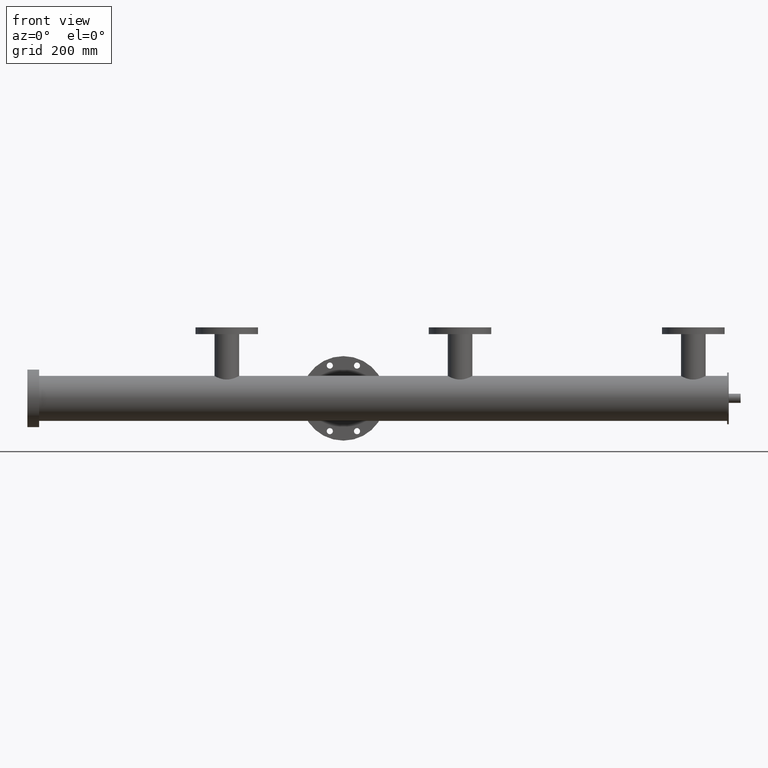
[diagram: clean part render]
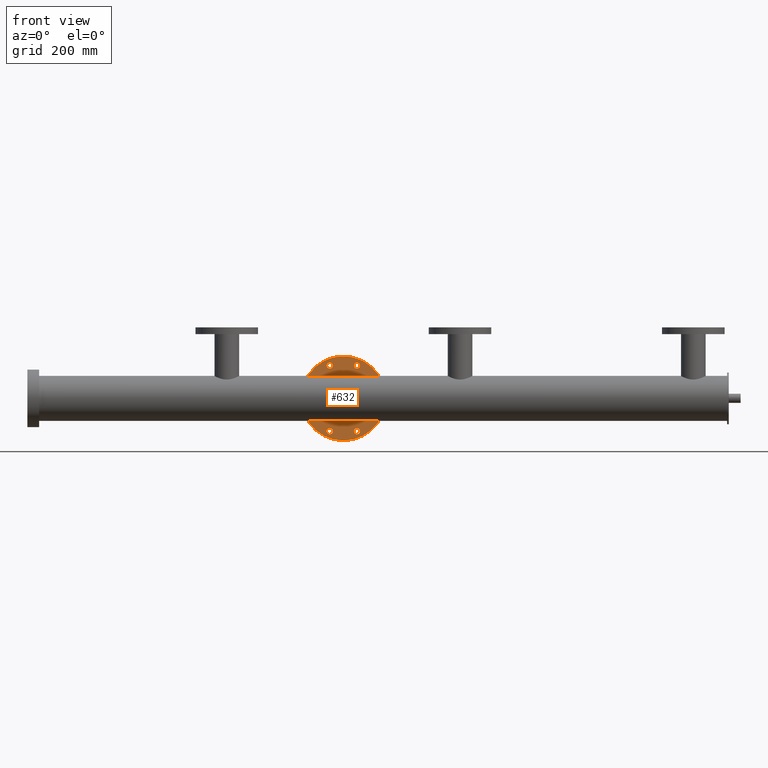
[diagram: same view with one face highlighted and labeled with its STEP entity id]
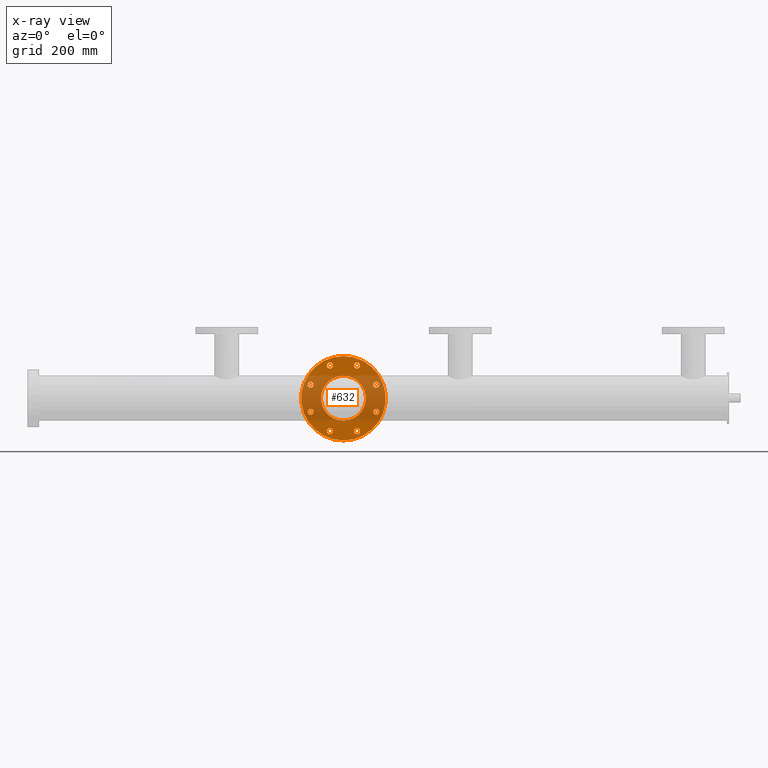
[diagram: x-ray of the same camera — body ghosted, the highlighted face saturated]
A machine part, front view. The second image highlights one B-rep face of the part: STEP entity #632.
The next image is the same camera in x-ray: the body ghosted, the highlighted face saturated — about 51% of this face is hidden behind the body in this view.
In plain terms, the highlighted planar face has unit normal (0, 1, -0).
Its self-contained STEP definition (entity closure, byte-faithful):
#52 = ORIENTED_EDGE ( 'NONE', *, *, #1548, .T. ) ;
#80 = DIRECTION ( 'NONE',  ( 0.000000000000000000, -5.448128108011975159E-32, 1.000000000000000000 ) ) ;
#100 = CARTESIAN_POINT ( 'NONE',  ( 33.81779936765415329, 103.3713119443644786, -4.437342591868188778E-31 ) ) ;
#143 = CARTESIAN_POINT ( 'NONE',  ( 66.50000000000000000, -6.557406274649660632E-30, 0.000000000000000000 ) ) ;
#229 = CIRCLE ( 'NONE', #545, 8.999999999999994671 ) ;
#303 = CARTESIAN_POINT ( 'NONE',  ( 31.18176039833452151, -97.00735091368505891, 0.000000000000000000 ) ) ;
#310 = EDGE_CURVE ( 'NONE', #4547, #3344, #7905, .T. ) ;
#409 = ORIENTED_EDGE ( 'NONE', *, *, #7514, .T. ) ;
#422 = DIRECTION ( 'NONE',  ( 1.000000000000000000, -9.860761315262647568E-32, 0.000000000000000000 ) ) ;
#520 = AXIS2_PLACEMENT_3D ( 'NONE', #8677, #4870, #3472 ) ;
#545 = AXIS2_PLACEMENT_3D ( 'NONE', #812, #4667, #9821 ) ;
#548 = CIRCLE ( 'NONE', #2775, 8.999999999999996447 ) ;
#562 = EDGE_CURVE ( 'NONE', #8723, #1207, #5442, .T. ) ;
#632 = ADVANCED_FACE ( 'NONE', ( #6120, #2165, #9216, #6726, #2922, #813, #2367, #3867, #6928, #4413 ), #3664, .F. ) ;
#743 = CARTESIAN_POINT ( 'NONE',  ( -40.18176039833451796, 97.00735091368507312, 0.000000000000000000 ) ) ;
#800 = DIRECTION ( 'NONE',  ( 1.000000000000000000, -9.860761315262647568E-32, 0.000000000000000000 ) ) ;
#801 = CIRCLE ( 'NONE', #1766, 8.999999999999996447 ) ;
#812 = CARTESIAN_POINT ( 'NONE',  ( 40.18176039833451796, -97.00735091368505891, 0.000000000000000000 ) ) ;
#813 = FACE_BOUND ( 'NONE', #2011, .T. ) ;
#832 = CARTESIAN_POINT ( 'NONE',  ( 0.000000000000000000, 0.000000000000000000, 0.000000000000000000 ) ) ;
#927 = DIRECTION ( 'NONE',  ( 0.000000000000000000, 5.448128108011975159E-32, -1.000000000000000000 ) ) ;
#996 = CARTESIAN_POINT ( 'NONE',  ( -103.3713119443641375, 33.81779936765534700, 5.546678239835235973E-32 ) ) ;
#999 = AXIS2_PLACEMENT_3D ( 'NONE', #7659, #9868, #8521 ) ;
#1056 = CARTESIAN_POINT ( 'NONE',  ( -66.50000000000000000, 8.143901214329904707E-15, 4.436901711466361209E-46 ) ) ;
#1083 = EDGE_CURVE ( 'NONE', #4926, #9372, #4323, .T. ) ;
#1127 = ORIENTED_EDGE ( 'NONE', *, *, #3205, .T. ) ;
#1207 = VERTEX_POINT ( 'NONE', #7015 ) ;
#1302 = AXIS2_PLACEMENT_3D ( 'NONE', #6320, #9366, #9120 ) ;
#1331 = DIRECTION ( 'NONE',  ( 0.000000000000000000, 5.448128108011975159E-32, -1.000000000000000000 ) ) ;
#1366 = DIRECTION ( 'NONE',  ( 0.000000000000000000, 5.448128108011975159E-32, -1.000000000000000000 ) ) ;
#1490 = VERTEX_POINT ( 'NONE', #4780 ) ;
#1548 = EDGE_CURVE ( 'NONE', #2047, #8408, #5123, .T. ) ;
#1588 = CIRCLE ( 'NONE', #7203, 8.999999999999996447 ) ;
#1671 = CARTESIAN_POINT ( 'NONE',  ( -97.00735091368493102, -40.18176039833485902, 0.000000000000000000 ) ) ;
#1698 = EDGE_LOOP ( 'NONE', ( #7377, #2779 ) ) ;
#1706 = EDGE_LOOP ( 'NONE', ( #4277, #7326 ) ) ;
#1766 = AXIS2_PLACEMENT_3D ( 'NONE', #7030, #927, #1824 ) ;
#1824 = DIRECTION ( 'NONE',  ( -0.7071067811865467956, -0.7071067811865483499, 6.162975822039153361E-33 ) ) ;
#1933 = CARTESIAN_POINT ( 'NONE',  ( 49.18176039833451085, -97.00735091368505891, 0.000000000000000000 ) ) ;
#1986 = DIRECTION ( 'NONE',  ( 0.7071067811865409114, 0.7071067811865541231, -6.162975822039156098E-33 ) ) ;
#2011 = EDGE_LOOP ( 'NONE', ( #9537, #7764 ) ) ;
#2047 = VERTEX_POINT ( 'NONE', #7049 ) ;
#2165 = FACE_BOUND ( 'NONE', #1706, .T. ) ;
#2174 = DIRECTION ( 'NONE',  ( -1.000000000000000000, 0.000000000000000000, 0.000000000000000000 ) ) ;
#2241 = AXIS2_PLACEMENT_3D ( 'NONE', #4278, #1366, #5745 ) ;
#2367 = FACE_BOUND ( 'NONE', #8548, .T. ) ;
#2415 = ORIENTED_EDGE ( 'NONE', *, *, #5394, .T. ) ;
#2457 = CIRCLE ( 'NONE', #8694, 125.0000000000000000 ) ;
#2491 = CARTESIAN_POINT ( 'NONE',  ( -40.18176039833382163, -97.00735091368534313, 0.000000000000000000 ) ) ;
#2571 = CARTESIAN_POINT ( 'NONE',  ( 0.000000000000000000, 0.000000000000000000, 0.000000000000000000 ) ) ;
#2666 = CARTESIAN_POINT ( 'NONE',  ( 97.00735091368464680, 40.18176039833552693, 0.000000000000000000 ) ) ;
#2694 = CARTESIAN_POINT ( 'NONE',  ( 40.18176039833315372, 97.00735091368562735, 0.000000000000000000 ) ) ;
#2744 = CIRCLE ( 'NONE', #1302, 8.999999999999994671 ) ;
#2775 = AXIS2_PLACEMENT_3D ( 'NONE', #2694, #5596, #8646 ) ;
#2779 = ORIENTED_EDGE ( 'NONE', *, *, #3792, .T. ) ;
#2922 = FACE_BOUND ( 'NONE', #7668, .T. ) ;
#3098 = EDGE_CURVE ( 'NONE', #8408, #2047, #8821, .T. ) ;
#3127 = CARTESIAN_POINT ( 'NONE',  ( 97.00735091368454732, 49.18176039833551982, -4.941586122532633914E-31 ) ) ;
#3194 = EDGE_CURVE ( 'NONE', #3344, #4547, #5142, .T. ) ;
#3205 = EDGE_CURVE ( 'NONE', #9223, #5204, #4992, .T. ) ;
#3225 = ORIENTED_EDGE ( 'NONE', *, *, #3098, .T. ) ;
#3262 = CARTESIAN_POINT ( 'NONE',  ( -33.81779936765486383, -103.3713119443642370, 6.656013887802282729E-31 ) ) ;
#3334 = DIRECTION ( 'NONE',  ( 0.000000000000000000, 5.448128108011975159E-32, -1.000000000000000000 ) ) ;
#3344 = VERTEX_POINT ( 'NONE', #143 ) ;
#3472 = DIRECTION ( 'NONE',  ( -0.7071067811865467956, -0.7071067811865483499, 6.162975822039153361E-33 ) ) ;
#3525 = CIRCLE ( 'NONE', #7364, 8.999999999999994671 ) ;
#3664 = PLANE ( 'NONE',  #6878 ) ;
#3691 = EDGE_LOOP ( 'NONE', ( #2415, #8761 ) ) ;
#3730 = CIRCLE ( 'NONE', #4851, 8.999999999999994671 ) ;
#3792 = EDGE_CURVE ( 'NONE', #1207, #8723, #5310, .T. ) ;
#3839 = VERTEX_POINT ( 'NONE', #1933 ) ;
#3867 = FACE_BOUND ( 'NONE', #7956, .T. ) ;
#4036 = CARTESIAN_POINT ( 'NONE',  ( -90.64338988300629296, 46.54572142901321286, 3.467167496953475610E-31 ) ) ;
#4132 = CARTESIAN_POINT ( 'NONE',  ( -97.00735091368493102, -40.18176039833485902, 0.000000000000000000 ) ) ;
#4166 = AXIS2_PLACEMENT_3D ( 'NONE', #2491, #3334, #7191 ) ;
#4271 = DIRECTION ( 'NONE',  ( 0.000000000000000000, 5.448128108011975159E-32, -1.000000000000000000 ) ) ;
#4277 = ORIENTED_EDGE ( 'NONE', *, *, #9464, .T. ) ;
#4278 = CARTESIAN_POINT ( 'NONE',  ( 97.00735091368548524, -40.18176039833348767, 0.000000000000000000 ) ) ;
#4304 = CARTESIAN_POINT ( 'NONE',  ( 0.000000000000000000, 0.000000000000000000, 0.000000000000000000 ) ) ;
#4323 = CIRCLE ( 'NONE', #9097, 125.0000000000000000 ) ;
#4413 = FACE_OUTER_BOUND ( 'NONE', #3691, .T. ) ;
#4435 = VERTEX_POINT ( 'NONE', #100 ) ;
#4451 = VERTEX_POINT ( 'NONE', #5008 ) ;
#4464 = CARTESIAN_POINT ( 'NONE',  ( -40.18176039833451796, 97.00735091368507312, 0.000000000000000000 ) ) ;
#4547 = VERTEX_POINT ( 'NONE', #1056 ) ;
#4667 = DIRECTION ( 'NONE',  ( 0.000000000000000000, 5.448128108011975159E-32, -1.000000000000000000 ) ) ;
#4725 = DIRECTION ( 'NONE',  ( 0.000000000000000000, 5.448128108011975159E-32, -1.000000000000000000 ) ) ;
#4780 = CARTESIAN_POINT ( 'NONE',  ( -31.18176039833452151, 97.00735091368507312, 0.000000000000000000 ) ) ;
#4785 = DIRECTION ( 'NONE',  ( 3.083952846180992055E-15, -1.000000000000000000, 9.570953035786913806E-32 ) ) ;
#4829 = CARTESIAN_POINT ( 'NONE',  ( -97.00735091368495944, -31.18176039833486612, 4.903315297210774797E-31 ) ) ;
#4851 = AXIS2_PLACEMENT_3D ( 'NONE', #9865, #5321, #5369 ) ;
#4870 = DIRECTION ( 'NONE',  ( 0.000000000000000000, 5.448128108011975159E-32, -1.000000000000000000 ) ) ;
#4926 = VERTEX_POINT ( 'NONE', #8390 ) ;
#4992 = CIRCLE ( 'NONE', #520, 8.999999999999996447 ) ;
#5005 = CIRCLE ( 'NONE', #6281, 8.999999999999994671 ) ;
#5008 = CARTESIAN_POINT ( 'NONE',  ( -49.18176039833451085, 97.00735091368507312, 0.000000000000000000 ) ) ;
#5123 = CIRCLE ( 'NONE', #4166, 8.999999999999998224 ) ;
#5142 = CIRCLE ( 'NONE', #6096, 66.50000000000000000 ) ;
#5151 = DIRECTION ( 'NONE',  ( -1.000000000000000000, 0.000000000000000000, 0.000000000000000000 ) ) ;
#5175 = EDGE_CURVE ( 'NONE', #6492, #4435, #548, .T. ) ;
#5204 = VERTEX_POINT ( 'NONE', #996 ) ;
#5218 = DIRECTION ( 'NONE',  ( 5.372269088807956380E-63, 5.448128108011975159E-32, -1.000000000000000000 ) ) ;
#5310 = CIRCLE ( 'NONE', #5640, 8.999999999999992895 ) ;
#5321 = DIRECTION ( 'NONE',  ( 0.000000000000000000, 5.448128108011975159E-32, -1.000000000000000000 ) ) ;
#5369 = DIRECTION ( 'NONE',  ( 1.000000000000000000, 0.000000000000000000, 0.000000000000000000 ) ) ;
#5379 = CARTESIAN_POINT ( 'NONE',  ( -97.00735091368490259, -49.18176039833485902, 8.613857732208217170E-31 ) ) ;
#5394 = EDGE_CURVE ( 'NONE', #9372, #4926, #2457, .T. ) ;
#5442 = CIRCLE ( 'NONE', #2241, 8.999999999999992895 ) ;
#5515 = ORIENTED_EDGE ( 'NONE', *, *, #7571, .T. ) ;
#5596 = DIRECTION ( 'NONE',  ( 0.000000000000000000, 5.448128108011975159E-32, -1.000000000000000000 ) ) ;
#5640 = AXIS2_PLACEMENT_3D ( 'NONE', #9497, #7145, #1986 ) ;
#5682 = DIRECTION ( 'NONE',  ( 0.000000000000000000, -5.448128108011975159E-32, 1.000000000000000000 ) ) ;
#5725 = CARTESIAN_POINT ( 'NONE',  ( 103.3713119443643507, -33.81779936765450856, -5.546678239835235973E-32 ) ) ;
#5726 = DIRECTION ( 'NONE',  ( 0.000000000000000000, 5.448128108011975159E-32, -1.000000000000000000 ) ) ;
#5745 = DIRECTION ( 'NONE',  ( 0.7071067811865409114, 0.7071067811865541231, -6.162975822039156098E-33 ) ) ;
#5772 = VERTEX_POINT ( 'NONE', #303 ) ;
#5873 = DIRECTION ( 'NONE',  ( -0.7071067811865561215, 0.7071067811865391350, -4.930380657631322689E-32 ) ) ;
#5991 = EDGE_CURVE ( 'NONE', #1490, #4451, #7237, .T. ) ;
#6069 = CIRCLE ( 'NONE', #9740, 8.999999999999994671 ) ;
#6096 = AXIS2_PLACEMENT_3D ( 'NONE', #2571, #6424, #422 ) ;
#6120 = FACE_BOUND ( 'NONE', #9191, .T. ) ;
#6281 = AXIS2_PLACEMENT_3D ( 'NONE', #4464, #1331, #2174 ) ;
#6320 = CARTESIAN_POINT ( 'NONE',  ( 97.00735091368464680, 40.18176039833552693, 0.000000000000000000 ) ) ;
#6424 = DIRECTION ( 'NONE',  ( 0.000000000000000000, -5.448128108011975159E-32, 1.000000000000000000 ) ) ;
#6492 = VERTEX_POINT ( 'NONE', #7222 ) ;
#6726 = FACE_BOUND ( 'NONE', #9808, .T. ) ;
#6758 = ORIENTED_EDGE ( 'NONE', *, *, #6921, .T. ) ;
#6878 = AXIS2_PLACEMENT_3D ( 'NONE', #9771, #5218, #8264 ) ;
#6921 = EDGE_CURVE ( 'NONE', #4451, #1490, #5005, .T. ) ;
#6928 = FACE_BOUND ( 'NONE', #9767, .T. ) ;
#6935 = AXIS2_PLACEMENT_3D ( 'NONE', #743, #8341, #5151 ) ;
#7015 = CARTESIAN_POINT ( 'NONE',  ( 90.64338988300661981, -46.54572142901246679, -3.467167496953502761E-31 ) ) ;
#7024 = ORIENTED_EDGE ( 'NONE', *, *, #5991, .T. ) ;
#7030 = CARTESIAN_POINT ( 'NONE',  ( -97.00735091368521523, 40.18176039833427637, 0.000000000000000000 ) ) ;
#7040 = CIRCLE ( 'NONE', #9597, 8.999999999999994671 ) ;
#7049 = CARTESIAN_POINT ( 'NONE',  ( -46.54572142901277942, -90.64338988300644928, 3.467167496953451526E-31 ) ) ;
#7124 = VERTEX_POINT ( 'NONE', #3127 ) ;
#7145 = DIRECTION ( 'NONE',  ( 0.000000000000000000, 5.448128108011975159E-32, -1.000000000000000000 ) ) ;
#7191 = DIRECTION ( 'NONE',  ( 0.7071067811865513475, -0.7071067811865435759, 7.395570986446982391E-32 ) ) ;
#7203 = AXIS2_PLACEMENT_3D ( 'NONE', #7281, #4271, #5873 ) ;
#7222 = CARTESIAN_POINT ( 'NONE',  ( 46.54572142901216836, 90.64338988300679034, -3.467167496953420872E-31 ) ) ;
#7232 = EDGE_CURVE ( 'NONE', #5204, #9223, #801, .T. ) ;
#7237 = CIRCLE ( 'NONE', #6935, 8.999999999999994671 ) ;
#7281 = CARTESIAN_POINT ( 'NONE',  ( 40.18176039833315372, 97.00735091368562735, 0.000000000000000000 ) ) ;
#7326 = ORIENTED_EDGE ( 'NONE', *, *, #8431, .T. ) ;
#7364 = AXIS2_PLACEMENT_3D ( 'NONE', #1671, #4725, #9381 ) ;
#7377 = ORIENTED_EDGE ( 'NONE', *, *, #562, .T. ) ;
#7422 = ORIENTED_EDGE ( 'NONE', *, *, #9555, .T. ) ;
#7469 = VERTEX_POINT ( 'NONE', #4829 ) ;
#7514 = EDGE_CURVE ( 'NONE', #5772, #3839, #3730, .T. ) ;
#7571 = EDGE_CURVE ( 'NONE', #3839, #5772, #229, .T. ) ;
#7579 = DIRECTION ( 'NONE',  ( 1.000000000000000000, -9.860761315262647568E-32, 0.000000000000000000 ) ) ;
#7659 = CARTESIAN_POINT ( 'NONE',  ( -40.18176039833382163, -97.00735091368534313, 0.000000000000000000 ) ) ;
#7668 = EDGE_LOOP ( 'NONE', ( #3225, #52 ) ) ;
#7764 = ORIENTED_EDGE ( 'NONE', *, *, #9852, .T. ) ;
#7905 = CIRCLE ( 'NONE', #9341, 66.50000000000000000 ) ;
#7956 = EDGE_LOOP ( 'NONE', ( #6758, #7024 ) ) ;
#8015 = DIRECTION ( 'NONE',  ( -1.079383496163347338E-14, 1.000000000000000000, -5.490651247258484925E-32 ) ) ;
#8020 = DIRECTION ( 'NONE',  ( 1.000000000000000000, -9.860761315262647568E-32, 0.000000000000000000 ) ) ;
#8084 = ORIENTED_EDGE ( 'NONE', *, *, #7232, .T. ) ;
#8264 = DIRECTION ( 'NONE',  ( -1.000000000000000000, 9.860761315262647568E-32, 0.000000000000000000 ) ) ;
#8341 = DIRECTION ( 'NONE',  ( 0.000000000000000000, 5.448128108011975159E-32, -1.000000000000000000 ) ) ;
#8390 = CARTESIAN_POINT ( 'NONE',  ( -125.0000000000000000, 1.530808498934192823E-14, 8.340040811026995035E-46 ) ) ;
#8408 = VERTEX_POINT ( 'NONE', #3262 ) ;
#8431 = EDGE_CURVE ( 'NONE', #9558, #7124, #2744, .T. ) ;
#8457 = CARTESIAN_POINT ( 'NONE',  ( 125.0000000000000000, -1.232595164407830946E-29, 0.000000000000000000 ) ) ;
#8489 = VERTEX_POINT ( 'NONE', #5379 ) ;
#8521 = DIRECTION ( 'NONE',  ( 0.7071067811865513475, -0.7071067811865435759, 7.395570986446982391E-32 ) ) ;
#8548 = EDGE_LOOP ( 'NONE', ( #8084, #1127 ) ) ;
#8563 = ORIENTED_EDGE ( 'NONE', *, *, #310, .F. ) ;
#8589 = DIRECTION ( 'NONE',  ( 0.000000000000000000, 5.448128108011975159E-32, -1.000000000000000000 ) ) ;
#8646 = DIRECTION ( 'NONE',  ( -0.7071067811865561215, 0.7071067811865391350, -4.930380657631322689E-32 ) ) ;
#8677 = CARTESIAN_POINT ( 'NONE',  ( -97.00735091368521523, 40.18176039833427637, 0.000000000000000000 ) ) ;
#8694 = AXIS2_PLACEMENT_3D ( 'NONE', #4304, #5682, #8020 ) ;
#8723 = VERTEX_POINT ( 'NONE', #5725 ) ;
#8761 = ORIENTED_EDGE ( 'NONE', *, *, #1083, .T. ) ;
#8821 = CIRCLE ( 'NONE', #999, 8.999999999999998224 ) ;
#8912 = CARTESIAN_POINT ( 'NONE',  ( 97.00735091368474627, 31.18176039833553403, -4.903315297210774797E-31 ) ) ;
#9052 = DIRECTION ( 'NONE',  ( 0.000000000000000000, -5.448128108011975159E-32, 1.000000000000000000 ) ) ;
#9097 = AXIS2_PLACEMENT_3D ( 'NONE', #9160, #9052, #800 ) ;
#9120 = DIRECTION ( 'NONE',  ( -1.079383496163347338E-14, 1.000000000000000000, -5.490651247258484925E-32 ) ) ;
#9160 = CARTESIAN_POINT ( 'NONE',  ( 0.000000000000000000, 0.000000000000000000, 0.000000000000000000 ) ) ;
#9191 = EDGE_LOOP ( 'NONE', ( #7422, #9720 ) ) ;
#9200 = EDGE_CURVE ( 'NONE', #8489, #7469, #6069, .T. ) ;
#9216 = FACE_BOUND ( 'NONE', #1698, .T. ) ;
#9223 = VERTEX_POINT ( 'NONE', #4036 ) ;
#9341 = AXIS2_PLACEMENT_3D ( 'NONE', #832, #80, #7579 ) ;
#9366 = DIRECTION ( 'NONE',  ( 0.000000000000000000, 5.448128108011975159E-32, -1.000000000000000000 ) ) ;
#9372 = VERTEX_POINT ( 'NONE', #8457 ) ;
#9381 = DIRECTION ( 'NONE',  ( 3.083952846180992055E-15, -1.000000000000000000, 9.570953035786913806E-32 ) ) ;
#9464 = EDGE_CURVE ( 'NONE', #7124, #9558, #7040, .T. ) ;
#9497 = CARTESIAN_POINT ( 'NONE',  ( 97.00735091368548524, -40.18176039833348767, 0.000000000000000000 ) ) ;
#9512 = ORIENTED_EDGE ( 'NONE', *, *, #3194, .F. ) ;
#9537 = ORIENTED_EDGE ( 'NONE', *, *, #9200, .T. ) ;
#9555 = EDGE_CURVE ( 'NONE', #4435, #6492, #1588, .T. ) ;
#9558 = VERTEX_POINT ( 'NONE', #8912 ) ;
#9597 = AXIS2_PLACEMENT_3D ( 'NONE', #2666, #5726, #8015 ) ;
#9720 = ORIENTED_EDGE ( 'NONE', *, *, #5175, .T. ) ;
#9740 = AXIS2_PLACEMENT_3D ( 'NONE', #4132, #8589, #4785 ) ;
#9767 = EDGE_LOOP ( 'NONE', ( #9512, #8563 ) ) ;
#9771 = CARTESIAN_POINT ( 'NONE',  ( 3.081487911019577365E-30, 66.50000000000001421, 0.000000000000000000 ) ) ;
#9808 = EDGE_LOOP ( 'NONE', ( #5515, #409 ) ) ;
#9821 = DIRECTION ( 'NONE',  ( 1.000000000000000000, 0.000000000000000000, 0.000000000000000000 ) ) ;
#9852 = EDGE_CURVE ( 'NONE', #7469, #8489, #3525, .T. ) ;
#9865 = CARTESIAN_POINT ( 'NONE',  ( 40.18176039833451796, -97.00735091368505891, 0.000000000000000000 ) ) ;
#9868 = DIRECTION ( 'NONE',  ( 0.000000000000000000, 5.448128108011975159E-32, -1.000000000000000000 ) ) ;